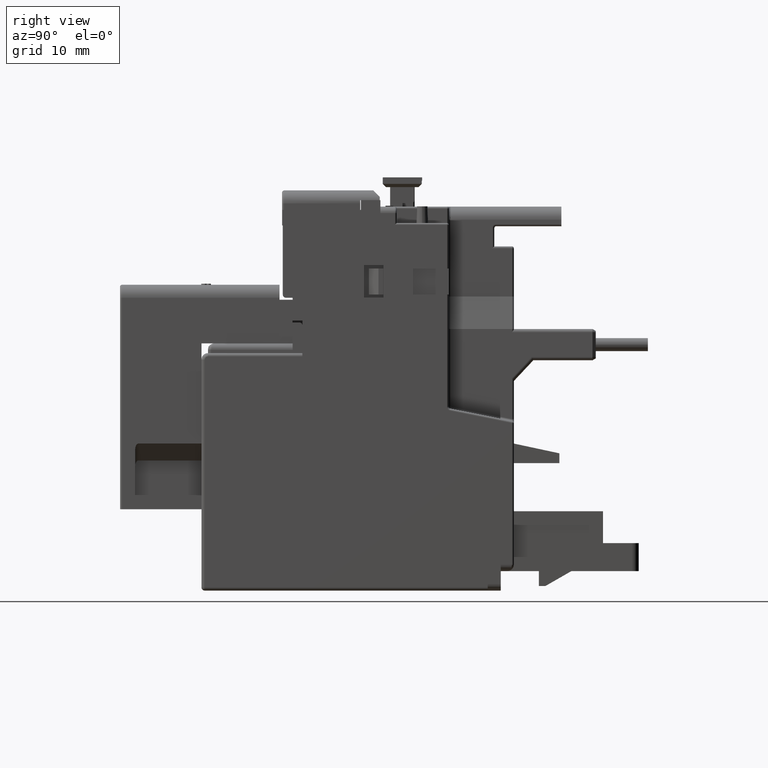
[diagram: clean part render]
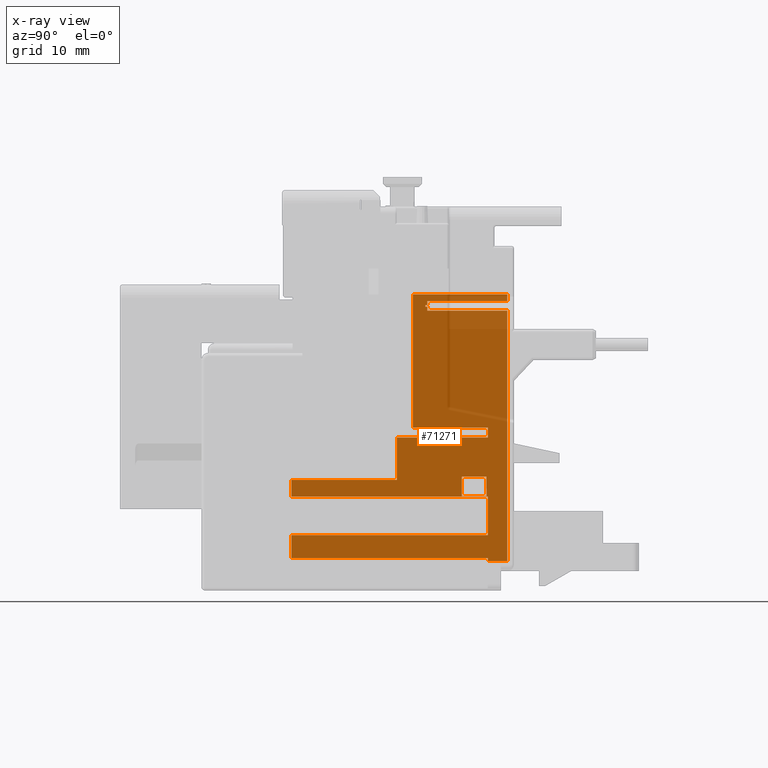
[diagram: x-ray — body ghosted, one internal face saturated and labeled with its STEP entity id]
A machine part, right view, then the same camera in x-ray: the body is ghosted and one INTERNAL B-rep face — a face not visible from any outside direction — is saturated and labeled: STEP entity #71271.
In plain terms, the highlighted planar face has unit normal (1, 0, 0).
Its self-contained STEP definition (entity closure, byte-faithful):
#6349=CARTESIAN_POINT('',(-8.267716535433E-1,1.303149606299E0,
-2.125984251969E0));
#6361=DIRECTION('',(0.E0,1.E0,0.E0));
#6362=VECTOR('',#6361,1.181102362205E-1);
#6363=CARTESIAN_POINT('',(-8.267716535433E-1,1.185039370079E0,
-2.125984251969E0));
#6364=LINE('',#6363,#6362);
#6397=DIRECTION('',(0.E0,0.E0,1.E0));
#6398=VECTOR('',#6397,2.322834645669E-1);
#6399=CARTESIAN_POINT('',(-8.267716535433E-1,1.185039370079E0,
-1.968503937008E0));
#6400=LINE('',#6399,#6398);
#6404=DIRECTION('',(0.E0,0.E0,1.E0));
#6405=VECTOR('',#6404,2.559055118110E-1);
#6406=CARTESIAN_POINT('',(-8.267716535433E-1,6.338582677165E-1,
-1.633858267717E0));
#6407=LINE('',#6406,#6405);
#6411=DIRECTION('',(0.E0,1.E0,0.E0));
#6412=VECTOR('',#6411,5.511811023622E-1);
#6413=CARTESIAN_POINT('',(-8.267716535433E-1,6.338582677165E-1,
-1.377952755906E0));
#6414=LINE('',#6413,#6412);
#6418=DIRECTION('',(0.E0,-1.E0,0.E0));
#6419=VECTOR('',#6418,4.527559055118E-1);
#6420=CARTESIAN_POINT('',(-8.267716535433E-1,1.185039370079E0,
-1.318897637795E0));
#6421=LINE('',#6420,#6419);
#6425=DIRECTION('',(-2.819966482548E-14,0.E0,1.E0));
#6426=VECTOR('',#6425,1.968503937008E-2);
#6427=CARTESIAN_POINT('',(-8.267716535433E-1,7.322834645669E-1,
-5.314960629921E-1));
#6428=LINE('',#6427,#6426);
#6432=DIRECTION('',(0.E0,1.E0,0.E0));
#6433=VECTOR('',#6432,5.708661417323E-1);
#6434=CARTESIAN_POINT('',(-8.267716535433E-1,7.322834645669E-1,
-5.118110236220E-1));
#6435=LINE('',#6434,#6433);
#6439=DIRECTION('',(0.E0,0.E0,-1.E0));
#6440=VECTOR('',#6439,3.937007874016E-2);
#6441=CARTESIAN_POINT('',(-8.267716535433E-1,1.303149606299E0,
-5.118110236220E-1));
#6442=LINE('',#6441,#6440);
#6446=DIRECTION('',(0.E0,0.E0,-1.E0));
#6447=VECTOR('',#6446,2.362204724409E-2);
#6448=CARTESIAN_POINT('',(-8.267716535433E-1,8.188976377953E-1,
-5.511811023622E-1));
#6449=LINE('',#6448,#6447);
#6453=DIRECTION('',(0.E0,-1.E0,0.E0));
#6454=VECTOR('',#6453,1.181102362205E-2);
#6455=CARTESIAN_POINT('',(-8.267716535433E-1,8.188976377953E-1,
-5.748031496063E-1));
#6456=LINE('',#6455,#6454);
#6460=DIRECTION('',(0.E0,0.E0,-1.E0));
#6461=VECTOR('',#6460,1.181102362205E-2);
#6462=CARTESIAN_POINT('',(-8.267716535433E-1,8.070866141732E-1,
-5.748031496063E-1));
#6463=LINE('',#6462,#6461);
#6467=DIRECTION('',(0.E0,1.E0,0.E0));
#6468=VECTOR('',#6467,1.181102362205E-2);
#6469=CARTESIAN_POINT('',(-8.267716535433E-1,8.070866141732E-1,
-5.866141732283E-1));
#6470=LINE('',#6469,#6468);
#6474=DIRECTION('',(0.E0,0.E0,-1.E0));
#6475=VECTOR('',#6474,2.362204724409E-2);
#6476=CARTESIAN_POINT('',(-8.267716535433E-1,8.188976377953E-1,
-5.866141732283E-1));
#6477=LINE('',#6476,#6475);
#6481=DIRECTION('',(0.E0,1.E0,0.E0));
#6482=VECTOR('',#6481,4.842519685039E-1);
#6483=CARTESIAN_POINT('',(-8.267716535433E-1,8.188976377953E-1,
-6.102362204724E-1));
#6484=LINE('',#6483,#6482);
#6488=DIRECTION('',(0.E0,0.E0,-1.E0));
#6489=VECTOR('',#6488,1.515748031496E0);
#6490=CARTESIAN_POINT('',(-8.267716535433E-1,1.303149606299E0,
-6.102362204724E-1));
#6491=LINE('',#6490,#6489);
#6495=DIRECTION('',(0.E0,0.E0,1.E0));
#6496=VECTOR('',#6495,1.968503937008E-2);
#6497=CARTESIAN_POINT('',(-8.267716535433E-1,1.185039370079E0,
-2.125984251969E0));
#6498=LINE('',#6497,#6496);
#6502=DIRECTION('',(0.E0,1.E0,0.E0));
#6503=VECTOR('',#6502,1.188976377953E0);
#6504=CARTESIAN_POINT('',(-8.267716535433E-1,-3.937007874016E-3,
-1.968503937008E0));
#6505=LINE('',#6504,#6503);
#6509=DIRECTION('',(0.E0,-1.199913609330E-2,9.999280077751E-1));
#6510=VECTOR('',#6509,1.181187398514E-1);
#6511=CARTESIAN_POINT('',(-8.267716535433E-1,1.178188976378E0,
-1.732283464567E0));
#6512=LINE('',#6511,#6510);
#6516=DIRECTION('',(0.E0,-1.E0,0.E0));
#6517=VECTOR('',#6516,1.492125984252E-1);
#6518=CARTESIAN_POINT('',(-8.267716535433E-1,1.176771653543E0,
-1.614173228346E0));
#6519=LINE('',#6518,#6517);
#6523=DIRECTION('',(0.E0,1.E0,0.E0));
#6524=VECTOR('',#6523,1.506299212598E-1);
#6525=CARTESIAN_POINT('',(-8.267716535433E-1,1.027559055118E0,
-1.732283464567E0));
#6526=LINE('',#6525,#6524);
#6573=DIRECTION('',(0.E0,0.E0,-1.E0));
#6574=VECTOR('',#6573,1.023622047244E-1);
#6575=CARTESIAN_POINT('',(-8.267716535433E-1,-3.937007874016E-3,
-1.633858267717E0));
#6576=LINE('',#6575,#6574);
#6594=DIRECTION('',(0.E0,0.E0,-1.E0));
#6595=VECTOR('',#6594,1.377952755906E-1);
#6596=CARTESIAN_POINT('',(-8.267716535433E-1,-3.937007874016E-3,
-1.968503937008E0));
#6597=LINE('',#6596,#6595);
#7206=DIRECTION('',(0.E0,1.E0,0.E0));
#7207=VECTOR('',#7206,1.188976377953E0);
#7208=CARTESIAN_POINT('',(-8.267716535433E-1,-3.937007874016E-3,
-2.106299212598E0));
#7209=LINE('',#7208,#7207);
#16543=DIRECTION('',(0.E0,0.E0,-1.E0));
#16544=VECTOR('',#16543,7.874015748031E-2);
#16545=CARTESIAN_POINT('',(-8.267716535433E-1,7.322834645669E-1,
-5.314960629921E-1));
#16546=LINE('',#16545,#16544);
#16585=DIRECTION('',(0.E0,0.E0,-1.E0));
#16586=VECTOR('',#16585,6.299212598425E-1);
#16587=CARTESIAN_POINT('',(-8.267716535433E-1,7.322834645669E-1,
-6.102362204724E-1));
#16588=LINE('',#16587,#16586);
#16655=DIRECTION('',(0.E0,0.E0,-1.E0));
#16656=VECTOR('',#16655,7.874015748031E-2);
#16657=CARTESIAN_POINT('',(-8.267716535433E-1,7.322834645669E-1,
-1.240157480315E0));
#16658=LINE('',#16657,#16656);
#16753=DIRECTION('',(0.E0,0.E0,-1.E0));
#16754=VECTOR('',#16753,5.905511811024E-2);
#16755=CARTESIAN_POINT('',(-8.267716535433E-1,1.185039370079E0,
-1.318897637795E0));
#16756=LINE('',#16755,#16754);
#44529=DIRECTION('',(0.E0,1.E0,0.E0));
#44530=VECTOR('',#44529,4.842519685039E-1);
#44531=CARTESIAN_POINT('',(-8.267716535433E-1,8.188976377953E-1,
-5.511811023622E-1));
#44532=LINE('',#44531,#44530);
#46636=DIRECTION('',(0.E0,0.E0,1.E0));
#46637=VECTOR('',#46636,1.181102362205E-1);
#46638=CARTESIAN_POINT('',(-8.267716535433E-1,1.027559055118E0,
-1.732283464567E0));
#46639=LINE('',#46638,#46637);
#50167=DIRECTION('',(0.E0,-1.E0,0.E0));
#50168=VECTOR('',#50167,6.377952755906E-1);
#50169=CARTESIAN_POINT('',(-8.267716535433E-1,6.338582677165E-1,
-1.633858267717E0));
#50170=LINE('',#50169,#50168);
#55554=DIRECTION('',(0.E0,1.E0,0.E0));
#55555=VECTOR('',#55554,1.188976377953E0);
#55556=CARTESIAN_POINT('',(-8.267716535433E-1,-3.937007874016E-3,
-1.736220472441E0));
#55557=LINE('',#55556,#55555);
#59091=VERTEX_POINT('',#6349);
#59092=CARTESIAN_POINT('',(-8.267716535433E-1,1.185039370079E0,
-2.125984251969E0));
#59093=VERTEX_POINT('',#59092);
#59094=CARTESIAN_POINT('',(-8.267716535433E-1,1.185039370079E0,
-2.106299212598E0));
#59095=VERTEX_POINT('',#59094);
#59098=CARTESIAN_POINT('',(-8.267716535433E-1,1.185039370079E0,
-1.968503937008E0));
#59099=CARTESIAN_POINT('',(-8.267716535433E-1,1.185039370079E0,
-1.736220472441E0));
#59100=VERTEX_POINT('',#59098);
#59101=VERTEX_POINT('',#59099);
#59102=CARTESIAN_POINT('',(-8.267716535433E-1,-3.937007874016E-3,
-1.736220472441E0));
#59103=VERTEX_POINT('',#59102);
#59104=CARTESIAN_POINT('',(-8.267716535433E-1,-3.937007874016E-3,
-1.633858267717E0));
#59105=VERTEX_POINT('',#59104);
#59106=CARTESIAN_POINT('',(-8.267716535433E-1,6.338582677165E-1,
-1.633858267717E0));
#59107=VERTEX_POINT('',#59106);
#59108=CARTESIAN_POINT('',(-8.267716535433E-1,6.338582677165E-1,
-1.377952755906E0));
#59109=VERTEX_POINT('',#59108);
#59110=CARTESIAN_POINT('',(-8.267716535433E-1,1.185039370079E0,
-1.377952755906E0));
#59111=VERTEX_POINT('',#59110);
#59112=CARTESIAN_POINT('',(-8.267716535433E-1,1.185039370079E0,
-1.318897637795E0));
#59113=VERTEX_POINT('',#59112);
#59114=CARTESIAN_POINT('',(-8.267716535433E-1,7.322834645669E-1,
-1.318897637795E0));
#59115=VERTEX_POINT('',#59114);
#59116=CARTESIAN_POINT('',(-8.267716535433E-1,7.322834645669E-1,
-1.240157480315E0));
#59117=VERTEX_POINT('',#59116);
#59118=CARTESIAN_POINT('',(-8.267716535433E-1,7.322834645669E-1,
-6.102362204724E-1));
#59119=VERTEX_POINT('',#59118);
#59120=CARTESIAN_POINT('',(-8.267716535433E-1,7.322834645669E-1,
-5.314960629921E-1));
#59121=VERTEX_POINT('',#59120);
#59122=CARTESIAN_POINT('',(-8.267716535433E-1,7.322834645669E-1,
-5.118110236220E-1));
#59123=VERTEX_POINT('',#59122);
#59124=CARTESIAN_POINT('',(-8.267716535433E-1,1.303149606299E0,
-5.118110236220E-1));
#59125=VERTEX_POINT('',#59124);
#59126=CARTESIAN_POINT('',(-8.267716535433E-1,1.303149606299E0,
-5.511811023622E-1));
#59127=VERTEX_POINT('',#59126);
#59128=CARTESIAN_POINT('',(-8.267716535433E-1,8.188976377953E-1,
-5.511811023622E-1));
#59129=VERTEX_POINT('',#59128);
#59130=CARTESIAN_POINT('',(-8.267716535433E-1,8.188976377953E-1,
-5.748031496063E-1));
#59131=VERTEX_POINT('',#59130);
#59132=CARTESIAN_POINT('',(-8.267716535433E-1,8.070866141732E-1,
-5.748031496063E-1));
#59133=VERTEX_POINT('',#59132);
#59134=CARTESIAN_POINT('',(-8.267716535433E-1,8.070866141732E-1,
-5.866141732283E-1));
#59135=VERTEX_POINT('',#59134);
#59136=CARTESIAN_POINT('',(-8.267716535433E-1,8.188976377953E-1,
-5.866141732283E-1));
#59137=VERTEX_POINT('',#59136);
#59138=CARTESIAN_POINT('',(-8.267716535433E-1,8.188976377953E-1,
-6.102362204724E-1));
#59139=VERTEX_POINT('',#59138);
#59140=CARTESIAN_POINT('',(-8.267716535433E-1,1.303149606299E0,
-6.102362204724E-1));
#59141=VERTEX_POINT('',#59140);
#59142=CARTESIAN_POINT('',(-8.267716535433E-1,-3.937007874016E-3,
-2.106299212598E0));
#59143=VERTEX_POINT('',#59142);
#59144=CARTESIAN_POINT('',(-8.267716535433E-1,-3.937007874016E-3,
-1.968503937008E0));
#59145=VERTEX_POINT('',#59144);
#59146=CARTESIAN_POINT('',(-8.267716535433E-1,1.178188976378E0,
-1.732283464567E0));
#59147=CARTESIAN_POINT('',(-8.267716535433E-1,1.176771653543E0,
-1.614173228346E0));
#59148=VERTEX_POINT('',#59146);
#59149=VERTEX_POINT('',#59147);
#59150=CARTESIAN_POINT('',(-8.267716535433E-1,1.027559055118E0,
-1.614173228346E0));
#59151=VERTEX_POINT('',#59150);
#59152=CARTESIAN_POINT('',(-8.267716535433E-1,1.027559055118E0,
-1.732283464567E0));
#59153=VERTEX_POINT('',#59152);
#71202=CARTESIAN_POINT('',(-8.267716535433E-1,-3.937007874016E-3,
-1.968503937008E0));
#71203=DIRECTION('',(1.E0,0.E0,0.E0));
#71204=DIRECTION('',(0.E0,0.E0,-1.E0));
#71205=AXIS2_PLACEMENT_3D('',#71202,#71203,#71204);
#71206=PLANE('',#71205);
#71208=ORIENTED_EDGE('',*,*,#71207,.T.);
#71210=ORIENTED_EDGE('',*,*,#71209,.F.);
#71212=ORIENTED_EDGE('',*,*,#71211,.F.);
#71214=ORIENTED_EDGE('',*,*,#71213,.F.);
#71216=ORIENTED_EDGE('',*,*,#71215,.T.);
#71218=ORIENTED_EDGE('',*,*,#71217,.T.);
#71220=ORIENTED_EDGE('',*,*,#71219,.F.);
#71222=ORIENTED_EDGE('',*,*,#71221,.T.);
#71224=ORIENTED_EDGE('',*,*,#71223,.F.);
#71226=ORIENTED_EDGE('',*,*,#71225,.F.);
#71228=ORIENTED_EDGE('',*,*,#71227,.F.);
#71230=ORIENTED_EDGE('',*,*,#71229,.T.);
#71232=ORIENTED_EDGE('',*,*,#71231,.T.);
#71234=ORIENTED_EDGE('',*,*,#71233,.T.);
#71236=ORIENTED_EDGE('',*,*,#71235,.F.);
#71238=ORIENTED_EDGE('',*,*,#71237,.T.);
#71240=ORIENTED_EDGE('',*,*,#71239,.T.);
#71242=ORIENTED_EDGE('',*,*,#71241,.T.);
#71244=ORIENTED_EDGE('',*,*,#71243,.T.);
#71246=ORIENTED_EDGE('',*,*,#71245,.T.);
#71248=ORIENTED_EDGE('',*,*,#71247,.T.);
#71250=ORIENTED_EDGE('',*,*,#71249,.T.);
#71251=ORIENTED_EDGE('',*,*,#71180,.F.);
#71252=ORIENTED_EDGE('',*,*,#71192,.T.);
#71254=ORIENTED_EDGE('',*,*,#71253,.F.);
#71256=ORIENTED_EDGE('',*,*,#71255,.F.);
#71258=ORIENTED_EDGE('',*,*,#71257,.T.);
#71259=EDGE_LOOP('',(#71208,#71210,#71212,#71214,#71216,#71218,#71220,#71222,
#71224,#71226,#71228,#71230,#71232,#71234,#71236,#71238,#71240,#71242,#71244,
#71246,#71248,#71250,#71251,#71252,#71254,#71256,#71258));
#71260=FACE_OUTER_BOUND('',#71259,.F.);
#71262=ORIENTED_EDGE('',*,*,#71261,.T.);
#71264=ORIENTED_EDGE('',*,*,#71263,.T.);
#71266=ORIENTED_EDGE('',*,*,#71265,.F.);
#71268=ORIENTED_EDGE('',*,*,#71267,.T.);
#71269=EDGE_LOOP('',(#71262,#71264,#71266,#71268));
#71270=FACE_BOUND('',#71269,.F.);
#71180=EDGE_CURVE('',#59093,#59091,#6364,.T.);
#71192=EDGE_CURVE('',#59093,#59095,#6498,.T.);
#71207=EDGE_CURVE('',#59100,#59101,#6400,.T.);
#71209=EDGE_CURVE('',#59103,#59101,#55557,.T.);
#71211=EDGE_CURVE('',#59105,#59103,#6576,.T.);
#71213=EDGE_CURVE('',#59107,#59105,#50170,.T.);
#71215=EDGE_CURVE('',#59107,#59109,#6407,.T.);
#71217=EDGE_CURVE('',#59109,#59111,#6414,.T.);
#71219=EDGE_CURVE('',#59113,#59111,#16756,.T.);
#71221=EDGE_CURVE('',#59113,#59115,#6421,.T.);
#71223=EDGE_CURVE('',#59117,#59115,#16658,.T.);
#71225=EDGE_CURVE('',#59119,#59117,#16588,.T.);
#71227=EDGE_CURVE('',#59121,#59119,#16546,.T.);
#71229=EDGE_CURVE('',#59121,#59123,#6428,.T.);
#71231=EDGE_CURVE('',#59123,#59125,#6435,.T.);
#71233=EDGE_CURVE('',#59125,#59127,#6442,.T.);
#71235=EDGE_CURVE('',#59129,#59127,#44532,.T.);
#71237=EDGE_CURVE('',#59129,#59131,#6449,.T.);
#71239=EDGE_CURVE('',#59131,#59133,#6456,.T.);
#71241=EDGE_CURVE('',#59133,#59135,#6463,.T.);
#71243=EDGE_CURVE('',#59135,#59137,#6470,.T.);
#71245=EDGE_CURVE('',#59137,#59139,#6477,.T.);
#71247=EDGE_CURVE('',#59139,#59141,#6484,.T.);
#71249=EDGE_CURVE('',#59141,#59091,#6491,.T.);
#71253=EDGE_CURVE('',#59143,#59095,#7209,.T.);
#71255=EDGE_CURVE('',#59145,#59143,#6597,.T.);
#71257=EDGE_CURVE('',#59145,#59100,#6505,.T.);
#71261=EDGE_CURVE('',#59148,#59149,#6512,.T.);
#71263=EDGE_CURVE('',#59149,#59151,#6519,.T.);
#71265=EDGE_CURVE('',#59153,#59151,#46639,.T.);
#71267=EDGE_CURVE('',#59153,#59148,#6526,.T.);
#71271=ADVANCED_FACE('',(#71260,#71270),#71206,.T.);